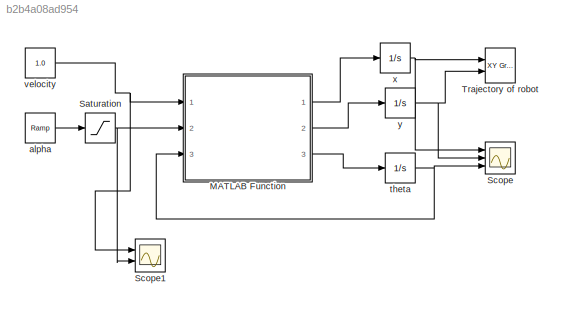
MODEL slx_b2b4a08ad954
KIND model
CONFIG AbsTol = auto
CONFIG EnableMultiTasking = off
CONFIG FixedStep = auto
CONFIG MaxStep = auto
CONFIG MinStep = auto
CONFIG RelTol = 1e-3
CONFIG SampleTimeConstraint = Unconstrained
CONFIG Solver = VariableStepAuto
CONFIG SolverName = VariableStepAuto
CONFIG StartTime = 0.0
CONFIG StopTime = 10
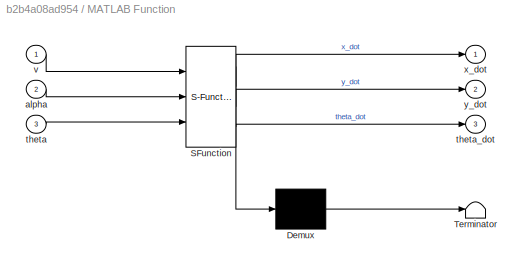
BLOCK [SubSystem] MATLAB Function
  ErrorFcn = Stateflow.Translate.translate
  PermitHierarchicalResolution = ExplicitOnly
  Ports = [3, 3]
  RequestExecContextInheritance = off
  SFBlockType = MATLAB Function
  TreatAsAtomicUnit = on
BLOCK [Demux] MATLAB Function/ Demux 
  Outputs = 1
  Ports = [1, 1]
BLOCK [S-Function] MATLAB Function/ SFunction 
  EnableBusSupport = on
  FunctionName = sf_sfun
  PortCounts = [3 4]
  Ports = [3, 4]
  SFcnIsStateOwnerBlock = off
  SFunctionDeploymentMode = off
  Tag = Stateflow S-Function Type1_b 2
BLOCK [Terminator] MATLAB Function/ Terminator 
BLOCK [Inport] MATLAB Function/alpha
  IconDisplay = Port number
  Port = 2
BLOCK [Inport] MATLAB Function/theta
  IconDisplay = Port number
  Port = 3
BLOCK [Outport] MATLAB Function/theta_dot
  IconDisplay = Port number
  Port = 3
BLOCK [Inport] MATLAB Function/v
  IconDisplay = Port number
BLOCK [Outport] MATLAB Function/x_dot
  IconDisplay = Port number
BLOCK [Outport] MATLAB Function/y_dot
  IconDisplay = Port number
  Port = 2
BLOCK [Saturate] Saturation
  InputPortMap = u0
  LowerLimit = -pi/4
  Ports = [1, 1]
  UpperLimit = pi/4
BLOCK [Scope] Scope
  Floating = off
  NumInputPorts = 3
  Ports = [3]
  ScopeSpecificationString = Simulink.scopes.TimeScopeBlockCfg('CurrentConfiguration', extmgr.ConfigurationSet(extmgr.Configuration('Core','General UI',true,'FigureColor',[1 1 1]),extmgr.Configuration('Core','Source UI',true),extmgr.Configuration('Sources','WiredSimulink',true,'DataLoggingSaveFormat','Array','DataLoggingLimitDataPoints',true,'DataLoggingDecimation','1'),extmgr.Configuration('Visuals','Time Domain',true,'Seria...<+2047ch>
BLOCK [Scope] Scope1
  Floating = off
  NumInputPorts = 2
  Ports = [2]
  ScopeSpecificationString = Simulink.scopes.TimeScopeBlockCfg('CurrentConfiguration', extmgr.ConfigurationSet(extmgr.Configuration('Core','General UI',true,'FigureColor',[1 1 1]),extmgr.Configuration('Core','Source UI',true),extmgr.Configuration('Sources','WiredSimulink',true,'DataLoggingVariableName','ScopeData1'),extmgr.Configuration('Visuals','Time Domain',true,'SerializedDisplays',{struct('MinYLimReal','-0.125','MaxYLimR...<+1738ch>
BLOCK [Reference] Trajectory of robot  REF=simulink/Sinks/XY Graph
  Ports = [2]
  SourceBlock = simulink/Sinks/XY Graph
  SourceProductBaseCode = SL
  SourceProductName = Simulink
  SourceType = XY scope.
BLOCK [Reference] alpha  REF=simulink/Sources/Ramp
  Ports = [0, 1]
  SourceBlock = simulink/Sources/Ramp
  SourceProductBaseCode = SL
  SourceProductName = Simulink
  SourceType = Ramp
BLOCK [Integrator] theta
  Ports = [1, 1]
BLOCK [Constant] velocity
  Value = 1.0
BLOCK [Integrator] x
  Ports = [1, 1]
BLOCK [Integrator] y
  Ports = [1, 1]
LINE MATLAB Function:1 -> x:1
LINE MATLAB Function:2 -> y:1
LINE MATLAB Function:3 -> theta:1
NET Saturation:1 -> MATLAB Function:2, Scope1:2
LINE alpha:1 -> Saturation:1
NET theta:1 -> MATLAB Function:3, Scope:3
NET velocity:1 -> MATLAB Function:1, Scope1:1
NET x:1 -> Scope:1, Trajectory of robot:1
NET y:1 -> Scope:2, Trajectory of robot:2
note: NET lines group one-source signal fan-out (src -> all destinations, sorted); 1:1 wires keep LINE
CHART MATLAB Function states=1 transitions=1
  STATE_LABEL 'eML_blk_kernel()'
  STATE_LABEL 'SCRIPT:\nfunction [x_dot, y_dot, theta_dot] = tricycle_type_1(v, alpha,theta)\nd = sqrt(3.1)\nx_dot = v*cos(alpha)*cos(theta);\ny_dot = v*cos(alpha)*sin(theta);\ntheta_dot = v/d*sin(alpha);\n'
